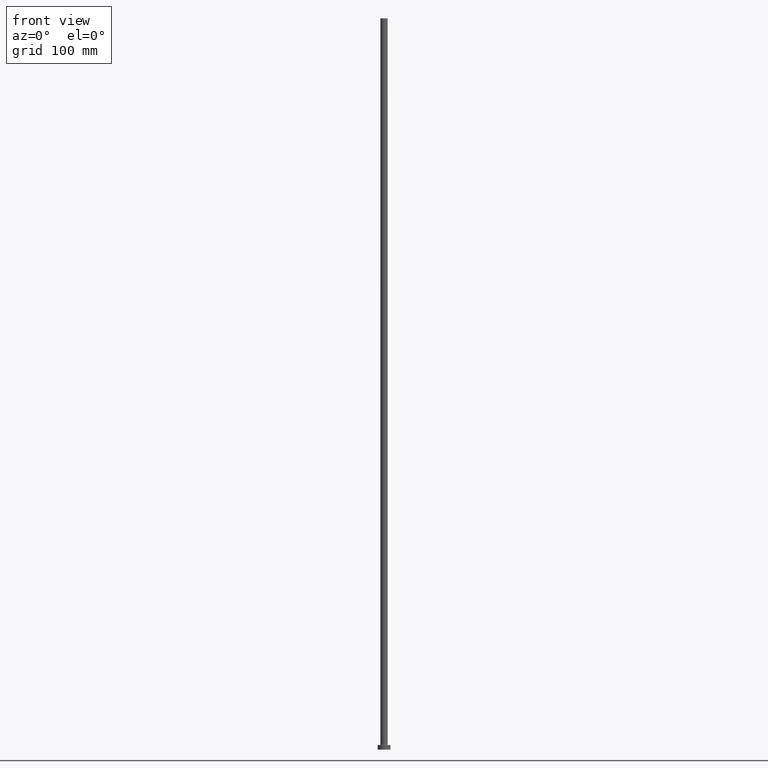
[diagram: clean part render]
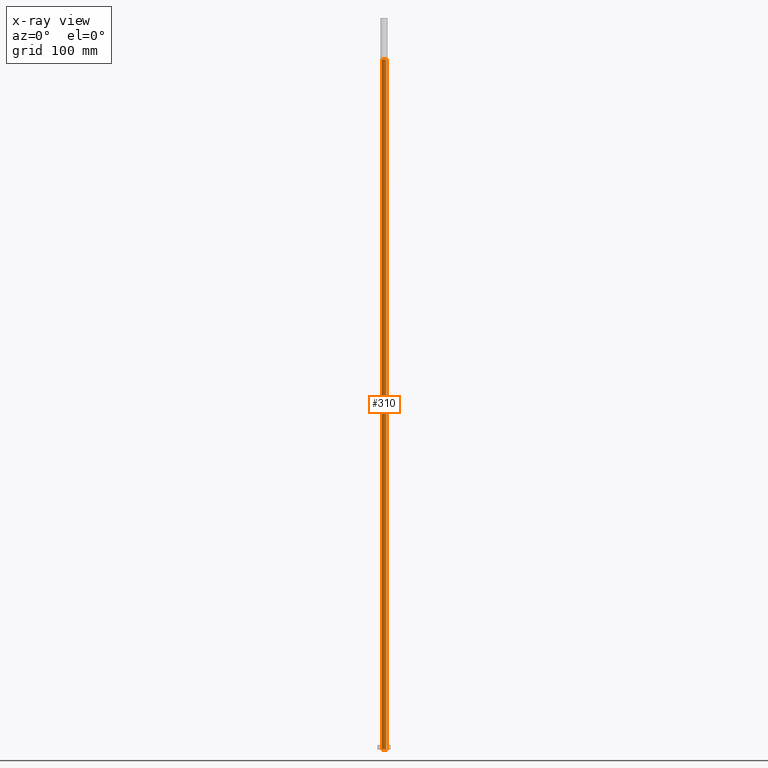
[diagram: x-ray — body ghosted, one internal face saturated and labeled with its STEP entity id]
A machine part, front view, then the same camera in x-ray: the body is ghosted and one INTERNAL B-rep face — a face not visible from any outside direction — is saturated and labeled: STEP entity #310.
In plain terms, the highlighted cylindrical surface (edge-blend (fillet) strip) has radius 2.4 mm, axis along (0, 0, -1).
Its self-contained STEP definition (entity closure, byte-faithful):
#4 = DIRECTION ( 'NONE',  ( -0.000000000000000000, -0.000000000000000000, -1.000000000000000000 ) ) ;
#10 = DIRECTION ( 'NONE',  ( 1.000000000000000000, 0.000000000000000000, 0.000000000000000000 ) ) ;
#13 = DIRECTION ( 'NONE',  ( 0.000000000000000000, 0.000000000000000000, -1.000000000000000000 ) ) ;
#31 = EDGE_CURVE ( 'NONE', #253, #126, #277, .T. ) ;
#70 = ORIENTED_EDGE ( 'NONE', *, *, #241, .F. ) ;
#78 = DIRECTION ( 'NONE',  ( 0.000000000000000000, 0.000000000000000000, 1.000000000000000000 ) ) ;
#80 = CYLINDRICAL_SURFACE ( 'NONE', #123, 2.399999999999999911 ) ;
#85 = VECTOR ( 'NONE', #263, 1000.000000000000000 ) ;
#109 = EDGE_CURVE ( 'NONE', #339, #307, #267, .T. ) ;
#110 = CARTESIAN_POINT ( 'NONE',  ( 0.000000000000000000, 0.000000000000000000, 761.7882250993909565 ) ) ;
#117 = ORIENTED_EDGE ( 'NONE', *, *, #31, .T. ) ;
#123 = AXIS2_PLACEMENT_3D ( 'NONE', #110, #13, #222 ) ;
#126 = VERTEX_POINT ( 'NONE', #329 ) ;
#134 = CARTESIAN_POINT ( 'NONE',  ( 0.000000000000000000, 0.000000000000000000, 0.000000000000000000 ) ) ;
#146 = EDGE_LOOP ( 'NONE', ( #454, #205, #117, #70 ) ) ;
#151 = CARTESIAN_POINT ( 'NONE',  ( -2.399999999999999911, 0.000000000000000000, 755.0000000000000000 ) ) ;
#154 = AXIS2_PLACEMENT_3D ( 'NONE', #134, #4, #284 ) ;
#182 = CARTESIAN_POINT ( 'NONE',  ( 2.399999999999999911, 2.939152317953647106E-16, 755.0000000000000000 ) ) ;
#189 = CARTESIAN_POINT ( 'NONE',  ( 2.399999999999999911, 2.939152317953647106E-16, 761.7882250993909565 ) ) ;
#198 = EDGE_CURVE ( 'NONE', #307, #253, #224, .T. ) ;
#205 = ORIENTED_EDGE ( 'NONE', *, *, #198, .T. ) ;
#222 = DIRECTION ( 'NONE',  ( -1.000000000000000000, 0.000000000000000000, 0.000000000000000000 ) ) ;
#224 = LINE ( 'NONE', #189, #85 ) ;
#240 = DIRECTION ( 'NONE',  ( 0.000000000000000000, 0.000000000000000000, -1.000000000000000000 ) ) ;
#241 = EDGE_CURVE ( 'NONE', #339, #126, #247, .T. ) ;
#247 = LINE ( 'NONE', #281, #407 ) ;
#253 = VERTEX_POINT ( 'NONE', #254 ) ;
#254 = CARTESIAN_POINT ( 'NONE',  ( 2.399999999999999911, 2.939152317953647106E-16, 0.000000000000000000 ) ) ;
#263 = DIRECTION ( 'NONE',  ( 0.000000000000000000, 0.000000000000000000, -1.000000000000000000 ) ) ;
#267 = CIRCLE ( 'NONE', #320, 2.399999999999999911 ) ;
#277 = CIRCLE ( 'NONE', #154, 2.399999999999999911 ) ;
#281 = CARTESIAN_POINT ( 'NONE',  ( -2.399999999999999911, 0.000000000000000000, 761.7882250993909565 ) ) ;
#284 = DIRECTION ( 'NONE',  ( 1.000000000000000000, 0.000000000000000000, 0.000000000000000000 ) ) ;
#307 = VERTEX_POINT ( 'NONE', #182 ) ;
#310 = ADVANCED_FACE ( 'NONE', ( #385 ), #80, .F. ) ;
#320 = AXIS2_PLACEMENT_3D ( 'NONE', #382, #78, #10 ) ;
#329 = CARTESIAN_POINT ( 'NONE',  ( -2.399999999999999911, 0.000000000000000000, 0.000000000000000000 ) ) ;
#339 = VERTEX_POINT ( 'NONE', #151 ) ;
#382 = CARTESIAN_POINT ( 'NONE',  ( 0.000000000000000000, 0.000000000000000000, 755.0000000000000000 ) ) ;
#385 = FACE_OUTER_BOUND ( 'NONE', #146, .T. ) ;
#407 = VECTOR ( 'NONE', #240, 1000.000000000000000 ) ;
#454 = ORIENTED_EDGE ( 'NONE', *, *, #109, .T. ) ;